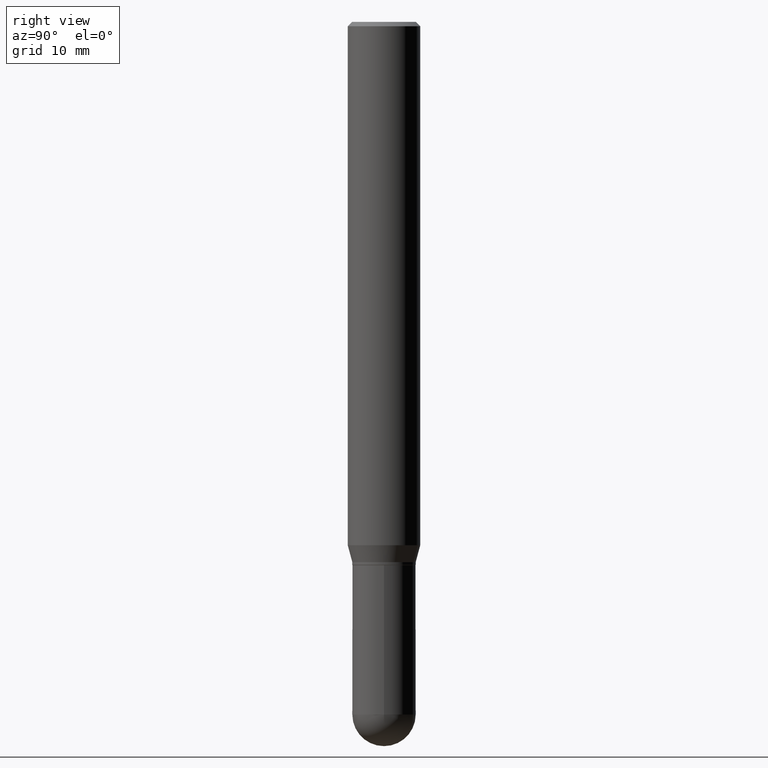
[diagram: clean part render]
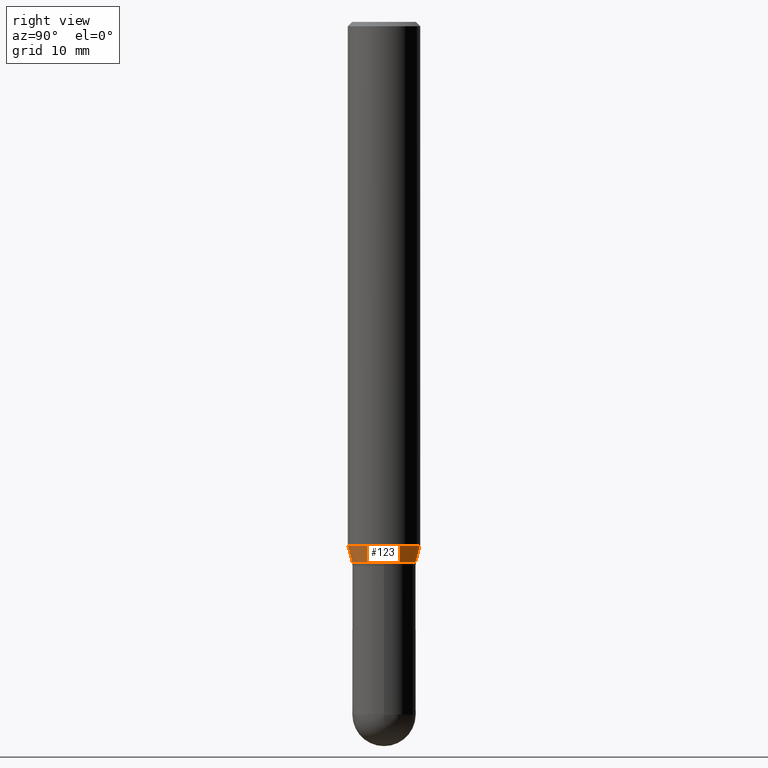
[diagram: same view with one face highlighted and labeled with its STEP entity id]
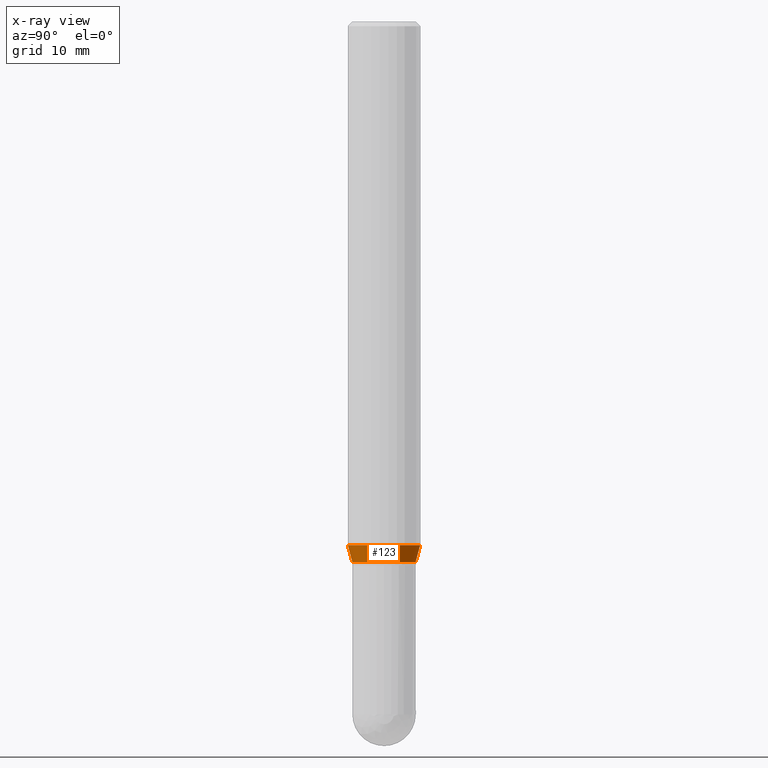
[diagram: x-ray of the same camera — body ghosted, the highlighted face saturated]
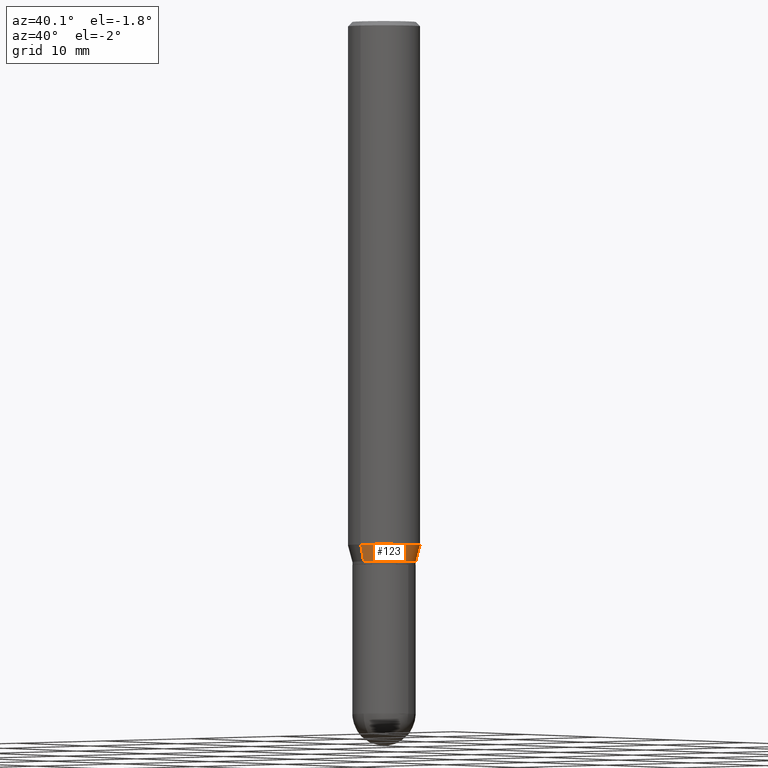
[diagram: same view with one face highlighted and labeled with its STEP entity id]
A machine part, right view. The second image highlights one B-rep face of the part: STEP entity #123.
The next image is the same camera in x-ray: the body ghosted, the highlighted face saturated — about 0% of this face is hidden behind the body in this view.
A second angle (auxiliary view) of the same face is appended — the face is thin or edge-on in the first view.
In plain terms, the highlighted conical surface has half-angle 15 deg.
Its self-contained STEP definition (entity closure, byte-faithful):
#12 = EDGE_CURVE ( 'NONE', #175, #270, #33, .T. ) ;
#24 = CIRCLE ( 'NONE', #161, 0.1250000000000000000 ) ;
#33 = CIRCLE ( 'NONE', #242, 0.1093999999999999140 ) ;
#44 = CARTESIAN_POINT ( 'NONE',  ( 7.773337529215944502E-16, 0.1093999999999934053, -1.865000000000000213 ) ) ;
#65 = EDGE_CURVE ( 'NONE', #175, #330, #83, .T. ) ;
#74 = DIRECTION ( 'NONE',  ( -6.982962677686265922E-15, -1.000000000000000000, 4.370956789862821150E-15 ) ) ;
#83 = LINE ( 'NONE', #318, #170 ) ;
#84 = FACE_OUTER_BOUND ( 'NONE', #144, .T. ) ;
#123 = ADVANCED_FACE ( 'NONE', ( #84 ), #292, .T. ) ;
#144 = EDGE_LOOP ( 'NONE', ( #149, #500, #190, #507 ) ) ;
#146 = CARTESIAN_POINT ( 'NONE',  ( 4.560450599855679736E-29, -6.512112089099771306E-15, -1.864999999999999991 ) ) ;
#149 = ORIENTED_EDGE ( 'NONE', *, *, #12, .T. ) ;
#161 = AXIS2_PLACEMENT_3D ( 'NONE', #267, #225, #74 ) ;
#170 = VECTOR ( 'NONE', #197, 39.37007874015748143 ) ;
#175 = VERTEX_POINT ( 'NONE', #483 ) ;
#190 = ORIENTED_EDGE ( 'NONE', *, *, #460, .F. ) ;
#196 = DIRECTION ( 'NONE',  ( 1.839019923739600315E-15, 0.2588190451025249583, 0.9659258262890670910 ) ) ;
#197 = DIRECTION ( 'NONE',  ( -1.807323732225330139E-15, -0.2588190451025181860, 0.9659258262890689783 ) ) ;
#219 = EDGE_CURVE ( 'NONE', #270, #384, #234, .T. ) ;
#225 = DIRECTION ( 'NONE',  ( -2.445281822978917058E-29, 3.491749109436874948E-15, 1.000000000000000000 ) ) ;
#234 = LINE ( 'NONE', #44, #370 ) ;
#242 = AXIS2_PLACEMENT_3D ( 'NONE', #146, #458, #394 ) ;
#267 = CARTESIAN_POINT ( 'NONE',  ( 4.418086310221640992E-29, -6.308822481794022912E-15, -1.806780007401925348 ) ) ;
#270 = VERTEX_POINT ( 'NONE', #374 ) ;
#284 = AXIS2_PLACEMENT_3D ( 'NONE', #472, #355, #477 ) ;
#292 = CONICAL_SURFACE ( 'NONE', #284, 0.1093999999999999140, 0.2617993877991502960 ) ;
#318 = CARTESIAN_POINT ( 'NONE',  ( -7.639361169388312262E-16, -0.1094000000000064227, -1.864999999999999547 ) ) ;
#329 = CARTESIAN_POINT ( 'NONE',  ( -8.728703347107391626E-16, -0.1250000000000063283, -1.806780007401924681 ) ) ;
#330 = VERTEX_POINT ( 'NONE', #329 ) ;
#355 = DIRECTION ( 'NONE',  ( -2.445281822978917058E-29, 3.491749109436874948E-15, 1.000000000000000000 ) ) ;
#370 = VECTOR ( 'NONE', #196, 39.37007874015748143 ) ;
#374 = CARTESIAN_POINT ( 'NONE',  ( 8.327560863108821759E-16, 0.1093999999999934053, -1.865000000000000213 ) ) ;
#384 = VERTEX_POINT ( 'NONE', #511 ) ;
#394 = DIRECTION ( 'NONE',  ( -6.982962677686265922E-15, -1.000000000000000000, 2.497118824190370411E-15 ) ) ;
#458 = DIRECTION ( 'NONE',  ( -2.445281822978917058E-29, 3.491749109436874948E-15, 1.000000000000000000 ) ) ;
#460 = EDGE_CURVE ( 'NONE', #330, #384, #24, .T. ) ;
#472 = CARTESIAN_POINT ( 'NONE',  ( 4.560450599855679736E-29, -6.512112089099771306E-15, -1.864999999999999991 ) ) ;
#477 = DIRECTION ( 'NONE',  ( -6.982962677686265922E-15, -1.000000000000000000, 2.497118824190370411E-15 ) ) ;
#483 = CARTESIAN_POINT ( 'NONE',  ( -7.639361169388312262E-16, -0.1094000000000064227, -1.864999999999999547 ) ) ;
#500 = ORIENTED_EDGE ( 'NONE', *, *, #219, .T. ) ;
#507 = ORIENTED_EDGE ( 'NONE', *, *, #65, .F. ) ;
#511 = CARTESIAN_POINT ( 'NONE',  ( 8.881784197001690141E-16, 0.1249999999999936579, -1.806780007401925792 ) ) ;